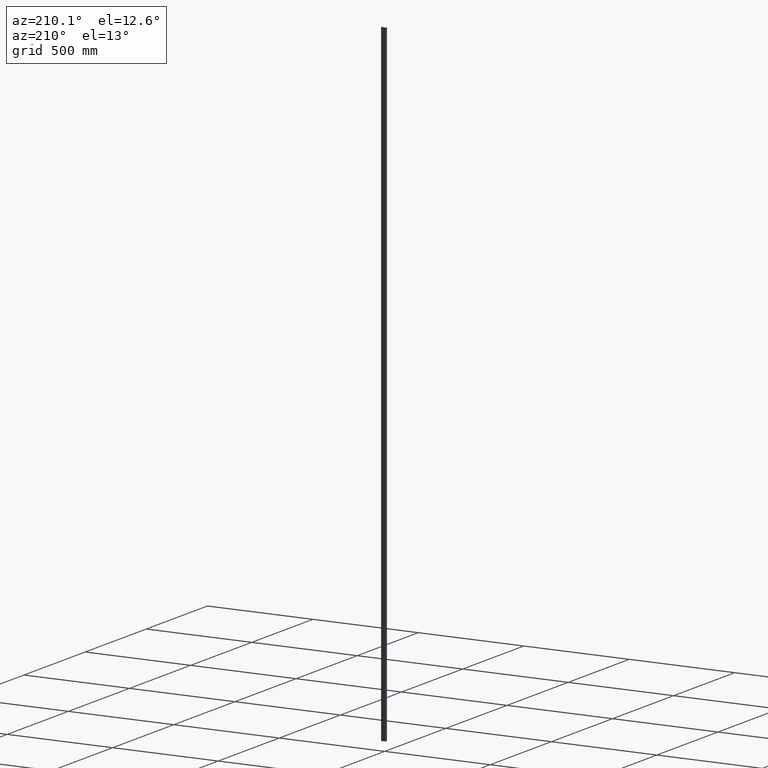
[diagram: clean part render]
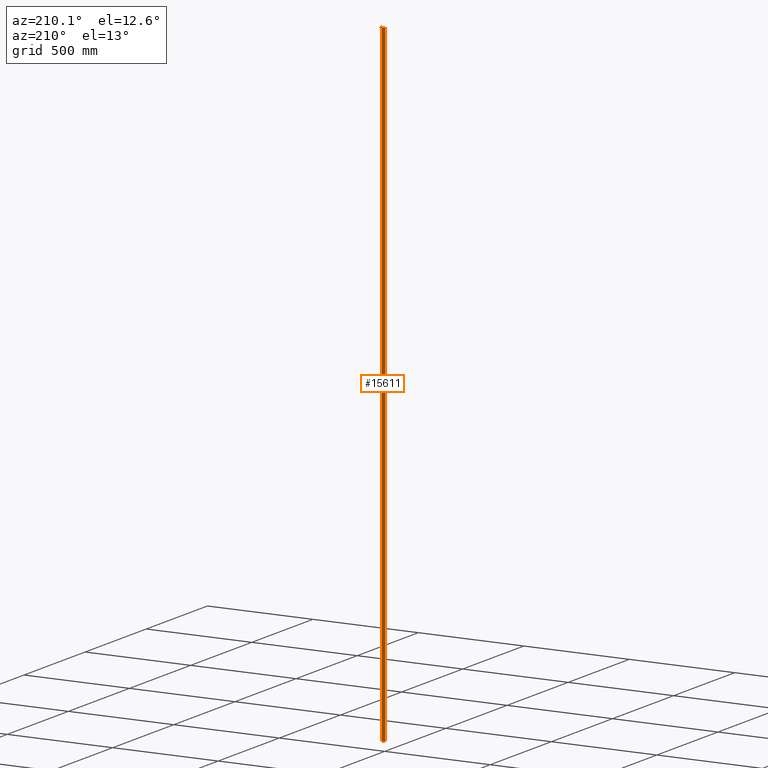
[diagram: same view with one face highlighted and labeled with its STEP entity id]
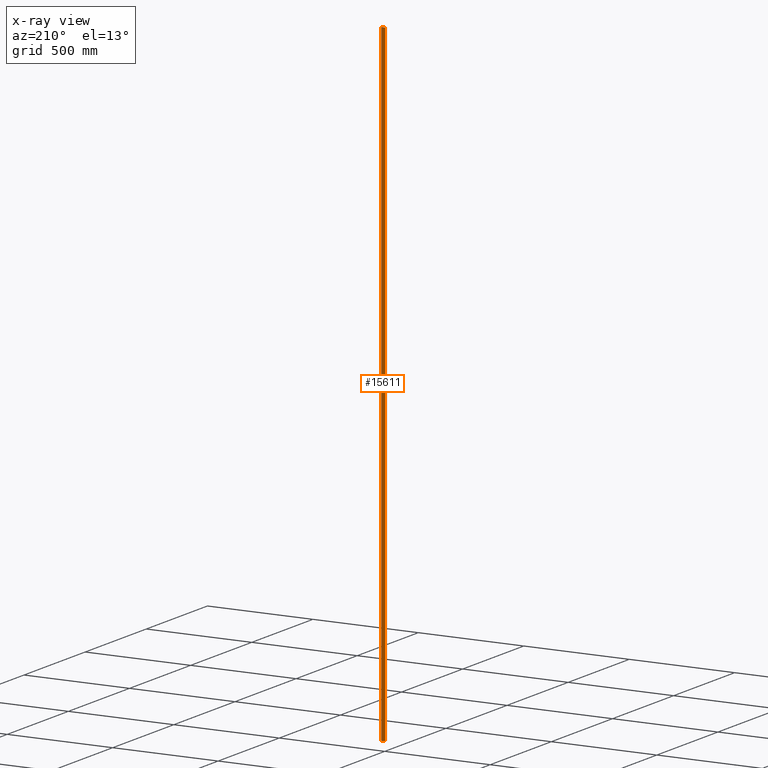
[diagram: x-ray of the same camera — body ghosted, the highlighted face saturated]
A machine part, auxiliary view. The second image highlights one B-rep face of the part: STEP entity #15611.
The next image is the same camera in x-ray: the body ghosted, the highlighted face saturated — about 0% of this face is hidden behind the body in this view.
In plain terms, the highlighted planar face has unit normal (-0, 1, 0).
Its self-contained STEP definition (entity closure, byte-faithful):
#237 = LINE ( 'NONE', #10674, #421 ) ;
#273 = CARTESIAN_POINT ( 'NONE',  ( 8.999999999999998200, 12.00000000000000200, -1500.000000000000000 ) ) ;
#421 = VECTOR ( 'NONE', #2884, 1000.000000000000000 ) ;
#620 = ORIENTED_EDGE ( 'NONE', *, *, #5684, .T. ) ;
#1743 = CARTESIAN_POINT ( 'NONE',  ( -9.000000000000001800, 12.00000000000000000, 1500.000000000000000 ) ) ;
#2126 = ORIENTED_EDGE ( 'NONE', *, *, #11744, .F. ) ;
#2210 = VECTOR ( 'NONE', #12947, 1000.000000000000000 ) ;
#2641 = VERTEX_POINT ( 'NONE', #15836 ) ;
#2884 = DIRECTION ( 'NONE',  ( -0.0000000000000000000, -0.0000000000000000000, -1.000000000000000000 ) ) ;
#3058 = DIRECTION ( 'NONE',  ( -1.000000000000000000, -9.637352644315595200E-017, 0.0000000000000000000 ) ) ;
#4229 = EDGE_CURVE ( 'NONE', #5353, #7249, #10287, .T. ) ;
#4263 = LINE ( 'NONE', #1743, #7280 ) ;
#4856 = ORIENTED_EDGE ( 'NONE', *, *, #8860, .T. ) ;
#4898 = VECTOR ( 'NONE', #12525, 1000.000000000000000 ) ;
#5142 = FACE_OUTER_BOUND ( 'NONE', #16409, .T. ) ;
#5353 = VERTEX_POINT ( 'NONE', #15127 ) ;
#5684 = EDGE_CURVE ( 'NONE', #5353, #2641, #4263, .T. ) ;
#6860 = CARTESIAN_POINT ( 'NONE',  ( -9.000000000000001800, 12.00000000000000000, 1500.000000000000000 ) ) ;
#6904 = CARTESIAN_POINT ( 'NONE',  ( -9.000000000000001800, 12.00000000000000000, -1500.000000000000000 ) ) ;
#7209 = LINE ( 'NONE', #6904, #2210 ) ;
#7249 = VERTEX_POINT ( 'NONE', #10090 ) ;
#7280 = VECTOR ( 'NONE', #8144, 1000.000000000000000 ) ;
#8144 = DIRECTION ( 'NONE',  ( 1.000000000000000000, 9.637352644315595200E-017, 0.0000000000000000000 ) ) ;
#8253 = CARTESIAN_POINT ( 'NONE',  ( -9.000000000000001800, 12.00000000000000000, 1500.000000000000000 ) ) ;
#8860 = EDGE_CURVE ( 'NONE', #2641, #11534, #237, .T. ) ;
#9494 = ORIENTED_EDGE ( 'NONE', *, *, #4229, .F. ) ;
#10090 = CARTESIAN_POINT ( 'NONE',  ( -9.000000000000001800, 12.00000000000000000, -1500.000000000000000 ) ) ;
#10287 = LINE ( 'NONE', #8253, #4898 ) ;
#10674 = CARTESIAN_POINT ( 'NONE',  ( 8.999999999999998200, 12.00000000000000200, 1500.000000000000000 ) ) ;
#10750 = DIRECTION ( 'NONE',  ( -9.637352644315595200E-017, 1.000000000000000000, 0.0000000000000000000 ) ) ;
#11242 = AXIS2_PLACEMENT_3D ( 'NONE', #6860, #10750, #3058 ) ;
#11534 = VERTEX_POINT ( 'NONE', #273 ) ;
#11744 = EDGE_CURVE ( 'NONE', #7249, #11534, #7209, .T. ) ;
#12525 = DIRECTION ( 'NONE',  ( -0.0000000000000000000, -0.0000000000000000000, -1.000000000000000000 ) ) ;
#12947 = DIRECTION ( 'NONE',  ( 1.000000000000000000, 9.637352644315595200E-017, 0.0000000000000000000 ) ) ;
#14469 = PLANE ( 'NONE',  #11242 ) ;
#15127 = CARTESIAN_POINT ( 'NONE',  ( -9.000000000000001800, 12.00000000000000000, 1500.000000000000000 ) ) ;
#15611 = ADVANCED_FACE ( 'NONE', ( #5142 ), #14469, .T. ) ;
#15836 = CARTESIAN_POINT ( 'NONE',  ( 8.999999999999998200, 12.00000000000000200, 1500.000000000000000 ) ) ;
#16409 = EDGE_LOOP ( 'NONE', ( #2126, #9494, #620, #4856 ) ) ;